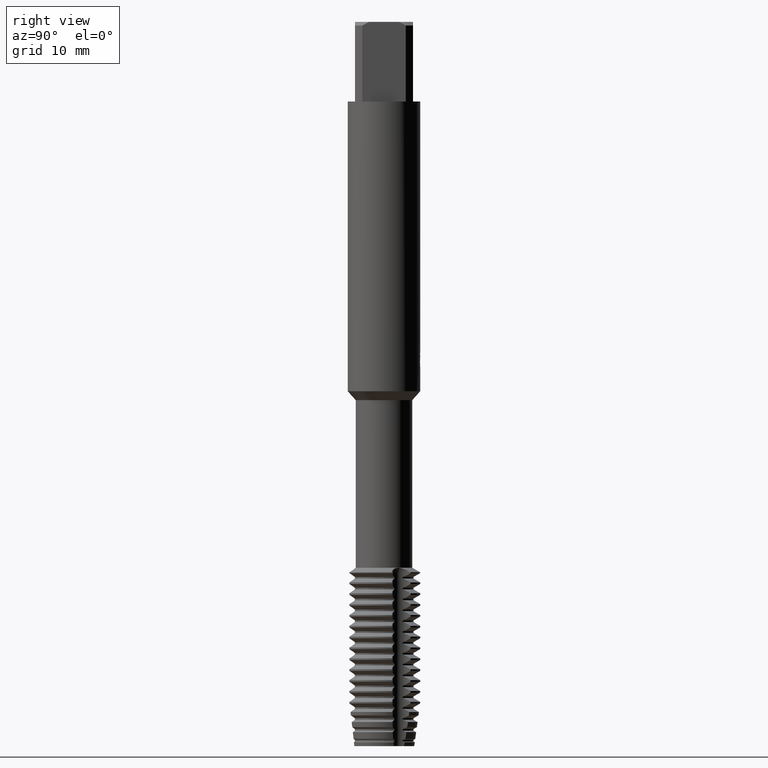
[diagram: clean part render]
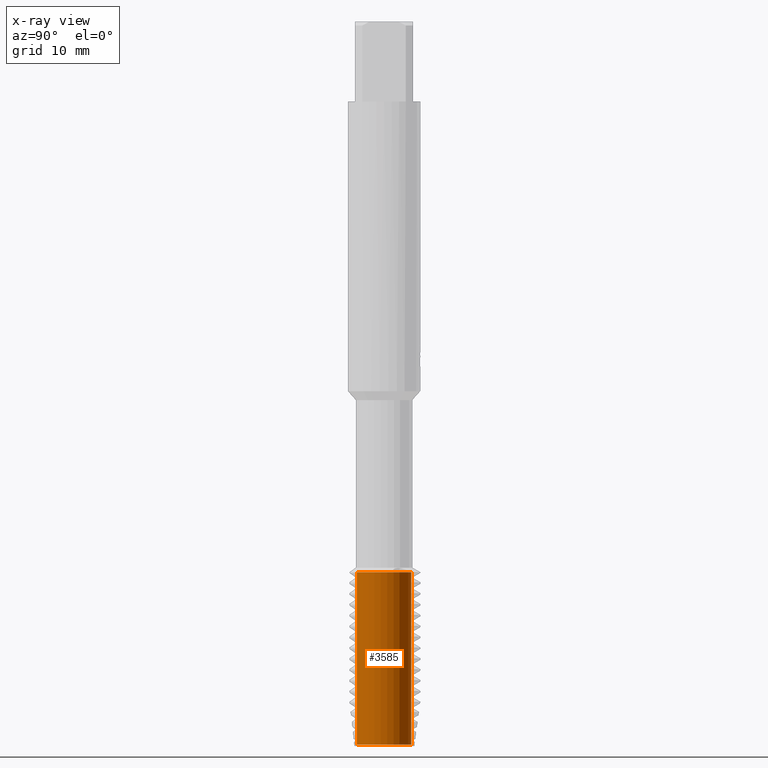
[diagram: x-ray — body ghosted, one internal face saturated and labeled with its STEP entity id]
A machine part, right view, then the same camera in x-ray: the body is ghosted and one INTERNAL B-rep face — a face not visible from any outside direction — is saturated and labeled: STEP entity #3585.
In plain terms, the highlighted cylindrical surface (edge-blend (fillet) strip) has radius 3.7693 mm, axis along (-0, -0, 1).
Its self-contained STEP definition (entity closure, byte-faithful):
#3527=EDGE_CURVE('',#5891,#6103,#7736,.T.);
#3585=ADVANCED_FACE('',(#7801),#7802,.T.);
#3915=EDGE_CURVE('',#5935,#5891,#8153,.T.);
#3961=EDGE_CURVE('',#5935,#6005,#8202,.T.);
#5053=EDGE_CURVE('',#6103,#6005,#9390,.T.);
#5891=VERTEX_POINT('',#10312);
#5935=VERTEX_POINT('',#10360);
#6005=VERTEX_POINT('',#10437);
#6103=VERTEX_POINT('',#10542);
#7736=CIRCLE('',#13273,3.769291065);
#7801=FACE_OUTER_BOUND('',#13362,.T.);
#7802=CYLINDRICAL_SURFACE('',#13363,3.769291065);
#8153=LINE('',#14051,#14052);
#8202=CIRCLE('',#14152,3.769291065);
#9390=LINE('',#16214,#16215);
#10312=CARTESIAN_POINT('',(0.0,3.769291065,-99.819366744252));
#10360=CARTESIAN_POINT('',(0.0,3.769291065,-76.0));
#10437=CARTESIAN_POINT('',(4.61589778760492E-016,-3.769291065,-76.0));
#10542=CARTESIAN_POINT('',(4.61589778760492E-016,-3.769291065,-99.819366744252));
#13273=AXIS2_PLACEMENT_3D('',#20185,#20186,#20187);
#13362=EDGE_LOOP('',(#20271,#20272,#20273,#20274));
#13363=AXIS2_PLACEMENT_3D('',#20275,#20276,#20277);
#14051=CARTESIAN_POINT('',(-4.61589778760492E-016,3.769291065,-87.909683372126));
#14052=VECTOR('',#20581,1.0);
#14152=AXIS2_PLACEMENT_3D('',#20621,#20622,#20623);
#16214=CARTESIAN_POINT('',(4.61589778760492E-016,-3.769291065,-87.909683372126));
#16215=VECTOR('',#22026,1.0);
#20185=CARTESIAN_POINT('',(0.0,0.0,-99.819366744252));
#20186=DIRECTION('',(0.0,0.0,-1.0));
#20187=DIRECTION('',(0.0,1.0,0.0));
#20271=ORIENTED_EDGE('',*,*,#3915,.F.);
#20272=ORIENTED_EDGE('',*,*,#3961,.T.);
#20273=ORIENTED_EDGE('',*,*,#5053,.F.);
#20274=ORIENTED_EDGE('',*,*,#3527,.F.);
#20275=CARTESIAN_POINT('',(0.0,0.0,-87.909683372126));
#20276=DIRECTION('',(-0.0,-0.0,1.0));
#20277=DIRECTION('',(0.0,1.0,0.0));
#20581=DIRECTION('',(0.0,0.0,-1.0));
#20621=CARTESIAN_POINT('',(0.0,0.0,-76.0));
#20622=DIRECTION('',(0.0,0.0,-1.0));
#20623=DIRECTION('',(0.0,1.0,0.0));
#22026=DIRECTION('',(-0.0,-0.0,1.0));